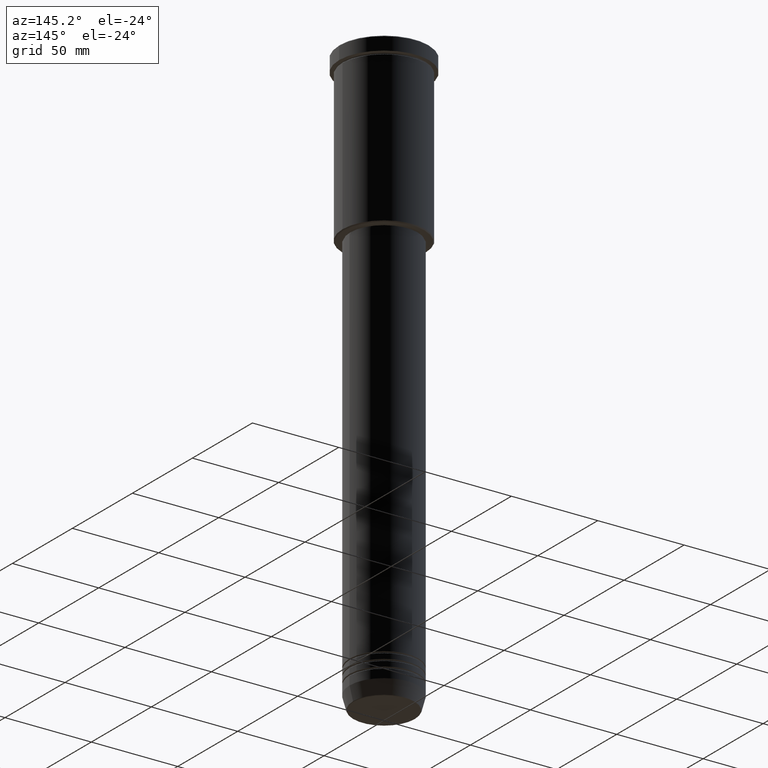
[diagram: clean part render]
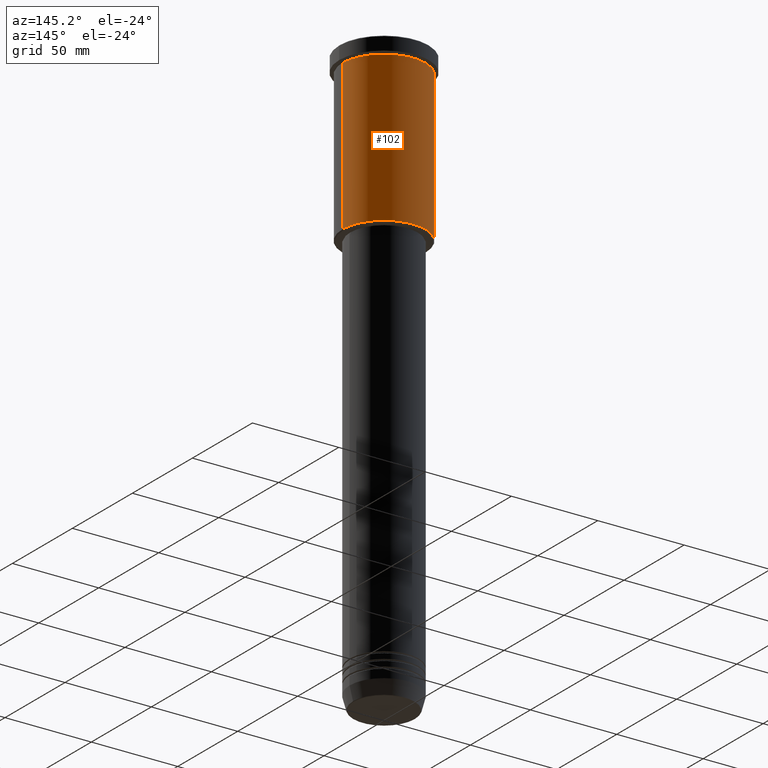
[diagram: same view with one face highlighted and labeled with its STEP entity id]
A machine part, auxiliary view. The second image highlights one B-rep face of the part: STEP entity #102.
In plain terms, the highlighted cylindrical surface (partial cylindrical patch) has radius 24 mm, axis along (-0, -0, 1).
Its self-contained STEP definition (entity closure, byte-faithful):
#1 = DIRECTION ( 'NONE',  ( 1.000000000000000000, 0.000000000000000000, 0.000000000000000000 ) ) ;
#31 = CIRCLE ( 'NONE', #255, 24.00000000000000000 ) ;
#41 = CARTESIAN_POINT ( 'NONE',  ( 24.00000000000000000, 0.000000000000000000, -95.50000000000000000 ) ) ;
#78 = FACE_OUTER_BOUND ( 'NONE', #1076, .T. ) ;
#102 = ADVANCED_FACE ( 'NONE', ( #78 ), #1004, .T. ) ;
#108 = VERTEX_POINT ( 'NONE', #715 ) ;
#134 = LINE ( 'NONE', #943, #1135 ) ;
#137 = VERTEX_POINT ( 'NONE', #618 ) ;
#143 = EDGE_CURVE ( 'NONE', #108, #753, #31, .T. ) ;
#144 = DIRECTION ( 'NONE',  ( -0.000000000000000000, -0.000000000000000000, 1.000000000000000000 ) ) ;
#193 = CARTESIAN_POINT ( 'NONE',  ( 0.000000000000000000, 0.000000000000000000, 0.000000000000000000 ) ) ;
#255 = AXIS2_PLACEMENT_3D ( 'NONE', #624, #355, #1 ) ;
#274 = DIRECTION ( 'NONE',  ( -0.000000000000000000, -0.000000000000000000, 1.000000000000000000 ) ) ;
#279 = DIRECTION ( 'NONE',  ( -0.000000000000000000, -0.000000000000000000, 1.000000000000000000 ) ) ;
#302 = AXIS2_PLACEMENT_3D ( 'NONE', #979, #607, #890 ) ;
#339 = CIRCLE ( 'NONE', #302, 24.00000000000000000 ) ;
#355 = DIRECTION ( 'NONE',  ( -0.000000000000000000, -0.000000000000000000, 1.000000000000000000 ) ) ;
#457 = EDGE_CURVE ( 'NONE', #137, #753, #1107, .T. ) ;
#587 = EDGE_CURVE ( 'NONE', #1111, #137, #339, .T. ) ;
#601 = CARTESIAN_POINT ( 'NONE',  ( -24.00000000000000000, 2.939152317953647894E-15, -8.999999999999994671 ) ) ;
#607 = DIRECTION ( 'NONE',  ( -0.000000000000000000, -0.000000000000000000, 1.000000000000000000 ) ) ;
#618 = CARTESIAN_POINT ( 'NONE',  ( -24.00000000000000000, 2.939152317953647894E-15, -95.50000000000000000 ) ) ;
#624 = CARTESIAN_POINT ( 'NONE',  ( 0.000000000000000000, 0.000000000000000000, -8.999999999999994671 ) ) ;
#630 = VECTOR ( 'NONE', #279, 1000.000000000000000 ) ;
#645 = CARTESIAN_POINT ( 'NONE',  ( -24.00000000000000000, 2.939152317953647894E-15, 0.000000000000000000 ) ) ;
#706 = DIRECTION ( 'NONE',  ( 1.000000000000000000, 0.000000000000000000, 0.000000000000000000 ) ) ;
#715 = CARTESIAN_POINT ( 'NONE',  ( 24.00000000000000000, 0.000000000000000000, -8.999999999999994671 ) ) ;
#730 = AXIS2_PLACEMENT_3D ( 'NONE', #193, #274, #706 ) ;
#753 = VERTEX_POINT ( 'NONE', #601 ) ;
#819 = ORIENTED_EDGE ( 'NONE', *, *, #143, .F. ) ;
#828 = ORIENTED_EDGE ( 'NONE', *, *, #457, .T. ) ;
#854 = EDGE_CURVE ( 'NONE', #1111, #108, #134, .T. ) ;
#890 = DIRECTION ( 'NONE',  ( -1.000000000000000000, 0.000000000000000000, 0.000000000000000000 ) ) ;
#916 = ORIENTED_EDGE ( 'NONE', *, *, #587, .T. ) ;
#943 = CARTESIAN_POINT ( 'NONE',  ( 24.00000000000000000, 0.000000000000000000, 0.000000000000000000 ) ) ;
#979 = CARTESIAN_POINT ( 'NONE',  ( 0.000000000000000000, 0.000000000000000000, -95.50000000000000000 ) ) ;
#1004 = CYLINDRICAL_SURFACE ( 'NONE', #730, 24.00000000000000000 ) ;
#1014 = ORIENTED_EDGE ( 'NONE', *, *, #854, .F. ) ;
#1076 = EDGE_LOOP ( 'NONE', ( #916, #828, #819, #1014 ) ) ;
#1107 = LINE ( 'NONE', #645, #630 ) ;
#1111 = VERTEX_POINT ( 'NONE', #41 ) ;
#1135 = VECTOR ( 'NONE', #144, 1000.000000000000000 ) ;